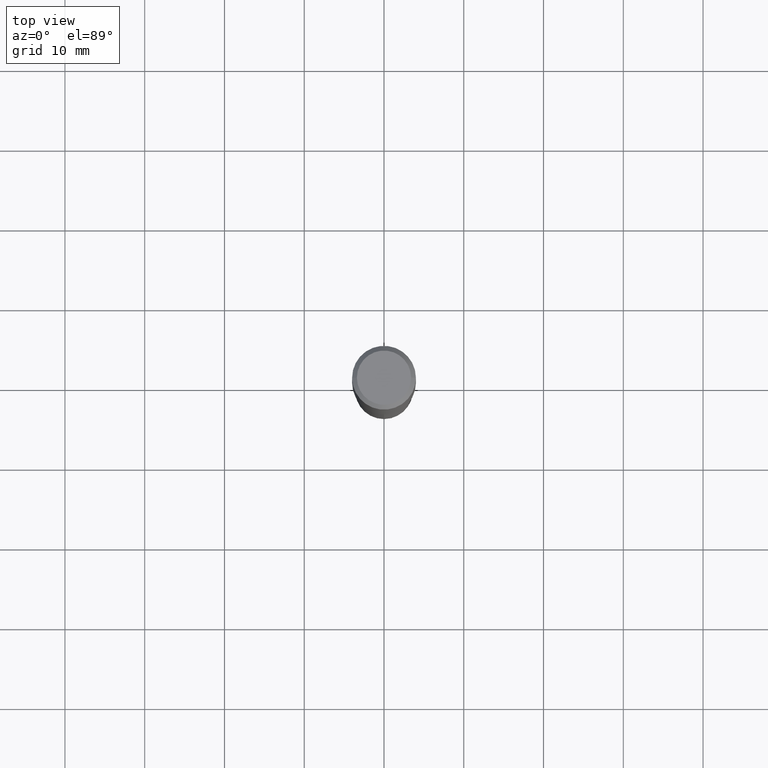
[diagram: clean part render]
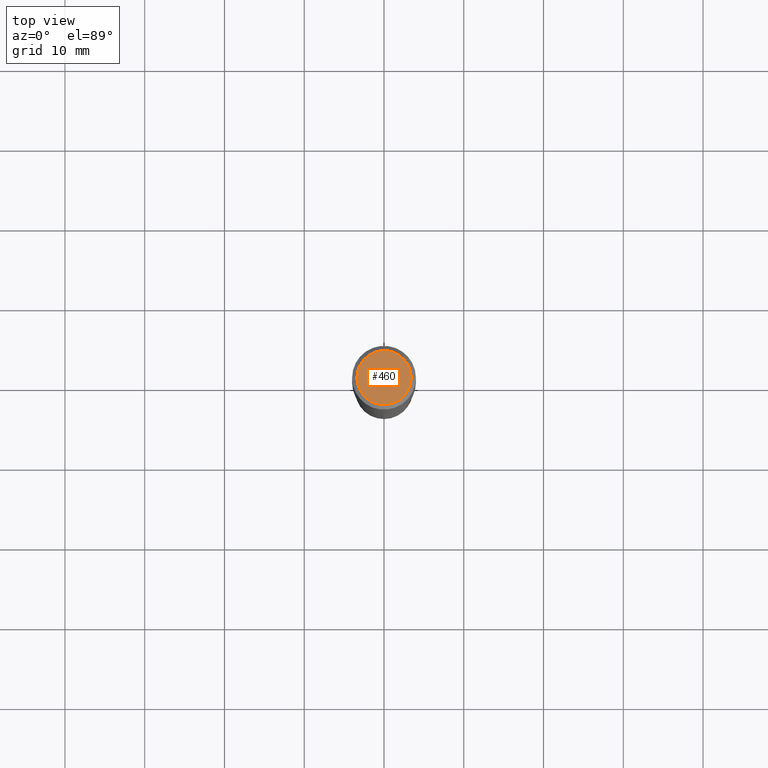
[diagram: same view with one face highlighted and labeled with its STEP entity id]
A machine part, top view. The second image highlights one B-rep face of the part: STEP entity #460.
In plain terms, the highlighted planar face has unit normal (0, -0, -1).
Its self-contained STEP definition (entity closure, byte-faithful):
#16 = AXIS2_PLACEMENT_3D ( 'NONE', #382, #429, #271 ) ;
#28 = PLANE ( 'NONE',  #107 ) ;
#43 = EDGE_CURVE ( 'NONE', #58, #436, #202, .T. ) ;
#58 = VERTEX_POINT ( 'NONE', #268 ) ;
#77 = EDGE_CURVE ( 'NONE', #436, #58, #407, .T. ) ;
#84 = CARTESIAN_POINT ( 'NONE',  ( -1.002970424325033577E-46, 1.431975951230896486E-32, 4.101342130344485961E-18 ) ) ;
#107 = AXIS2_PLACEMENT_3D ( 'NONE', #445, #444, #179 ) ;
#151 = CARTESIAN_POINT ( 'NONE',  ( 0.1338749999999999940, -1.040731925365424925E-15, 4.101342130351393887E-18 ) ) ;
#179 = DIRECTION ( 'NONE',  ( -1.000000000000000000, 6.982962677686265922E-15, -4.876176775795935793E-29 ) ) ;
#187 = DIRECTION ( 'NONE',  ( -2.445468806185136597E-29, 3.491481338843145583E-15, 1.000000000000000000 ) ) ;
#195 = DIRECTION ( 'NONE',  ( 1.000000000000000000, -6.982962677686266711E-15, 4.876170806578254279E-29 ) ) ;
#202 = CIRCLE ( 'NONE', #16, 0.1338749999999999940 ) ;
#210 = EDGE_LOOP ( 'NONE', ( #484, #300 ) ) ;
#268 = CARTESIAN_POINT ( 'NONE',  ( -0.1338749999999999940, 9.760872517903331886E-16, 4.101342130337804525E-18 ) ) ;
#271 = DIRECTION ( 'NONE',  ( 1.000000000000000000, -6.982962677686266711E-15, 4.876170806578254279E-29 ) ) ;
#300 = ORIENTED_EDGE ( 'NONE', *, *, #77, .T. ) ;
#366 = FACE_OUTER_BOUND ( 'NONE', #210, .T. ) ;
#367 = AXIS2_PLACEMENT_3D ( 'NONE', #84, #187, #195 ) ;
#382 = CARTESIAN_POINT ( 'NONE',  ( -1.002970424325033577E-46, 1.431975951230896486E-32, 4.101342130344485961E-18 ) ) ;
#407 = CIRCLE ( 'NONE', #367, 0.1338749999999999940 ) ;
#429 = DIRECTION ( 'NONE',  ( -2.445468806185136597E-29, 3.491481338843145583E-15, 1.000000000000000000 ) ) ;
#436 = VERTEX_POINT ( 'NONE', #151 ) ;
#444 = DIRECTION ( 'NONE',  ( 2.438088387897960049E-29, -3.491481338843145188E-15, -1.000000000000000000 ) ) ;
#445 = CARTESIAN_POINT ( 'NONE',  ( -5.014852121625167883E-47, 7.159879756154482429E-33, 2.050671065172242981E-18 ) ) ;
#460 = ADVANCED_FACE ( 'NONE', ( #366 ), #28, .F. ) ;
#484 = ORIENTED_EDGE ( 'NONE', *, *, #43, .T. ) ;